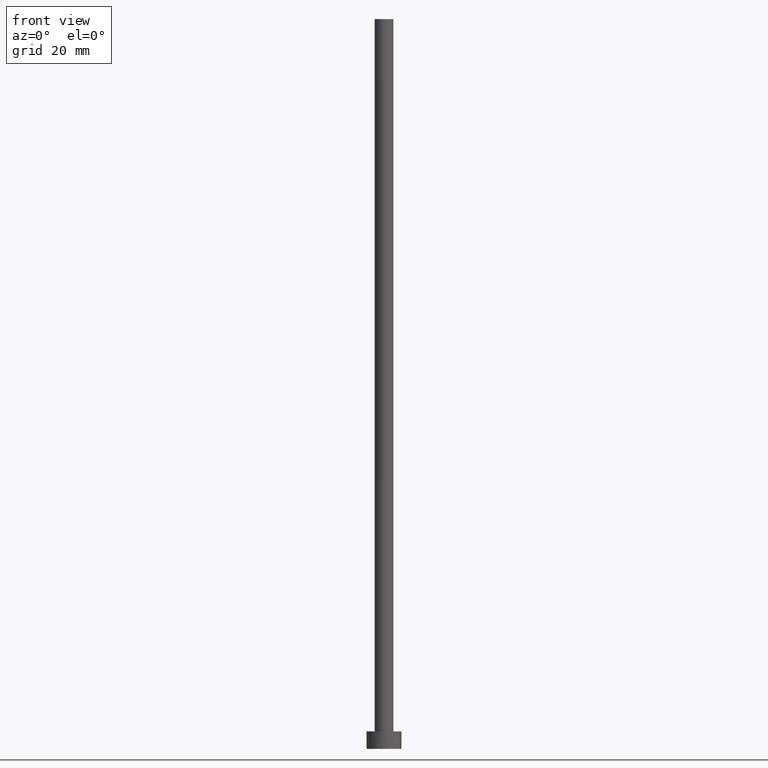
[diagram: clean part render]
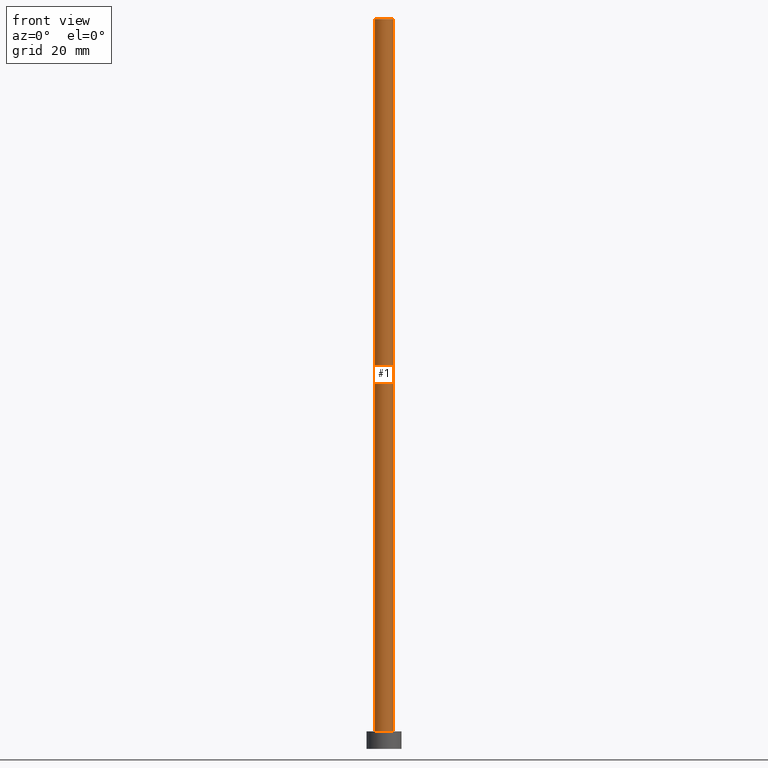
[diagram: same view with one face highlighted and labeled with its STEP entity id]
A machine part, front view. The second image highlights one B-rep face of the part: STEP entity #1.
In plain terms, the highlighted cylindrical surface (edge-blend (fillet) strip) has radius 1.6 mm, axis along (-0, -0, -1).
Its self-contained STEP definition (entity closure, byte-faithful):
#1 = ADVANCED_FACE ( 'NONE', ( #181 ), #108, .T. ) ;
#4 = CARTESIAN_POINT ( 'NONE',  ( 1.600000000000000089, 1.959434878635764737E-16, 3.000000000000000000 ) ) ;
#8 = VERTEX_POINT ( 'NONE', #4 ) ;
#13 = EDGE_CURVE ( 'NONE', #76, #68, #164, .T. ) ;
#16 = VECTOR ( 'NONE', #116, 1000.000000000000000 ) ;
#30 = CARTESIAN_POINT ( 'NONE',  ( 0.000000000000000000, 0.000000000000000000, 3.000000000000000000 ) ) ;
#32 = LINE ( 'NONE', #206, #16 ) ;
#50 = AXIS2_PLACEMENT_3D ( 'NONE', #30, #63, #163 ) ;
#56 = LINE ( 'NONE', #138, #179 ) ;
#58 = DIRECTION ( 'NONE',  ( 1.000000000000000000, 0.000000000000000000, 0.000000000000000000 ) ) ;
#63 = DIRECTION ( 'NONE',  ( 0.000000000000000000, 0.000000000000000000, 1.000000000000000000 ) ) ;
#68 = VERTEX_POINT ( 'NONE', #232 ) ;
#73 = EDGE_CURVE ( 'NONE', #76, #107, #56, .T. ) ;
#75 = ORIENTED_EDGE ( 'NONE', *, *, #13, .F. ) ;
#76 = VERTEX_POINT ( 'NONE', #237 ) ;
#77 = AXIS2_PLACEMENT_3D ( 'NONE', #137, #212, #156 ) ;
#93 = DIRECTION ( 'NONE',  ( -0.000000000000000000, -0.000000000000000000, -1.000000000000000000 ) ) ;
#107 = VERTEX_POINT ( 'NONE', #222 ) ;
#108 = CYLINDRICAL_SURFACE ( 'NONE', #77, 1.600000000000000089 ) ;
#116 = DIRECTION ( 'NONE',  ( -0.000000000000000000, -0.000000000000000000, -1.000000000000000000 ) ) ;
#137 = CARTESIAN_POINT ( 'NONE',  ( 0.000000000000000000, 0.000000000000000000, 125.0000000000000000 ) ) ;
#138 = CARTESIAN_POINT ( 'NONE',  ( -1.600000000000000089, 0.000000000000000000, 125.0000000000000000 ) ) ;
#156 = DIRECTION ( 'NONE',  ( -1.000000000000000000, 0.000000000000000000, 0.000000000000000000 ) ) ;
#160 = CIRCLE ( 'NONE', #50, 1.600000000000000089 ) ;
#163 = DIRECTION ( 'NONE',  ( 1.000000000000000000, 0.000000000000000000, 0.000000000000000000 ) ) ;
#164 = CIRCLE ( 'NONE', #246, 1.600000000000000089 ) ;
#170 = EDGE_CURVE ( 'NONE', #68, #8, #32, .T. ) ;
#179 = VECTOR ( 'NONE', #93, 1000.000000000000000 ) ;
#181 = FACE_OUTER_BOUND ( 'NONE', #238, .T. ) ;
#183 = EDGE_CURVE ( 'NONE', #107, #8, #160, .T. ) ;
#206 = CARTESIAN_POINT ( 'NONE',  ( 1.600000000000000089, 1.959434878635764737E-16, 125.0000000000000000 ) ) ;
#211 = ORIENTED_EDGE ( 'NONE', *, *, #170, .F. ) ;
#212 = DIRECTION ( 'NONE',  ( -0.000000000000000000, -0.000000000000000000, -1.000000000000000000 ) ) ;
#215 = DIRECTION ( 'NONE',  ( 0.000000000000000000, 0.000000000000000000, 1.000000000000000000 ) ) ;
#222 = CARTESIAN_POINT ( 'NONE',  ( -1.600000000000000089, 0.000000000000000000, 3.000000000000000000 ) ) ;
#229 = ORIENTED_EDGE ( 'NONE', *, *, #183, .T. ) ;
#232 = CARTESIAN_POINT ( 'NONE',  ( 1.600000000000000089, 1.959434878635764737E-16, 125.0000000000000000 ) ) ;
#233 = CARTESIAN_POINT ( 'NONE',  ( 0.000000000000000000, 0.000000000000000000, 125.0000000000000000 ) ) ;
#237 = CARTESIAN_POINT ( 'NONE',  ( -1.600000000000000089, 0.000000000000000000, 125.0000000000000000 ) ) ;
#238 = EDGE_LOOP ( 'NONE', ( #211, #75, #254, #229 ) ) ;
#246 = AXIS2_PLACEMENT_3D ( 'NONE', #233, #215, #58 ) ;
#254 = ORIENTED_EDGE ( 'NONE', *, *, #73, .T. ) ;